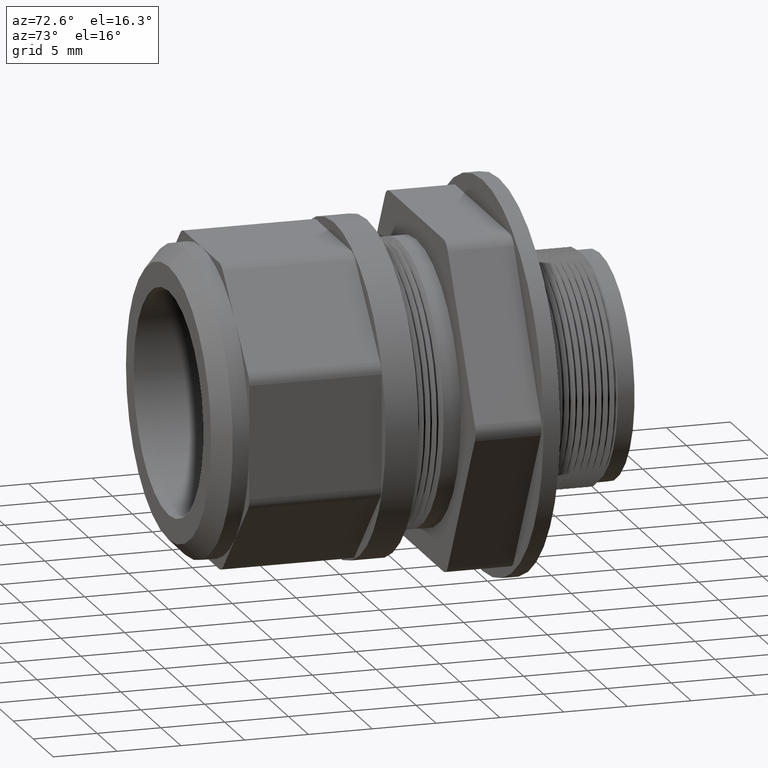
[diagram: clean part render]
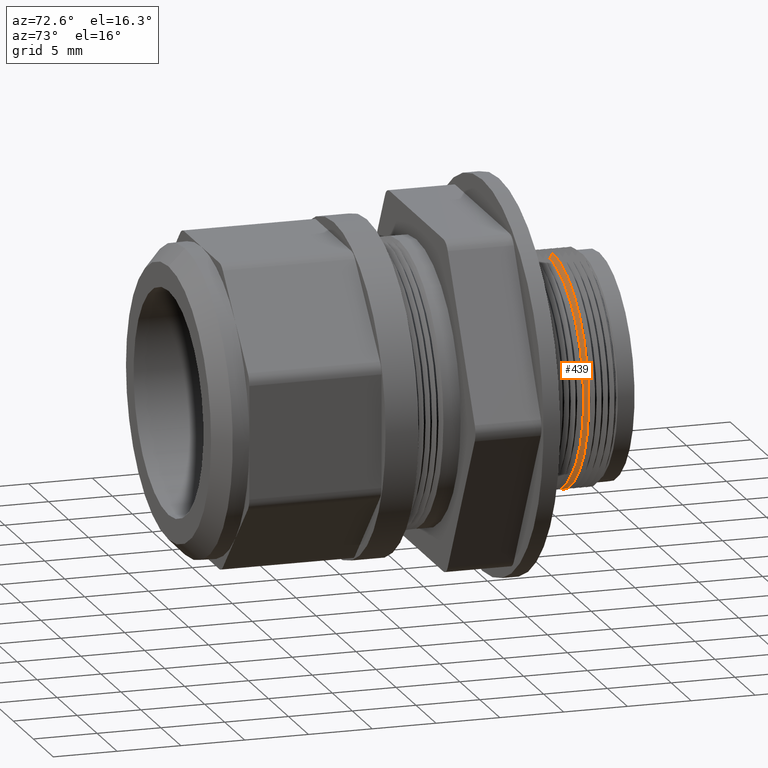
[diagram: same view with one face highlighted and labeled with its STEP entity id]
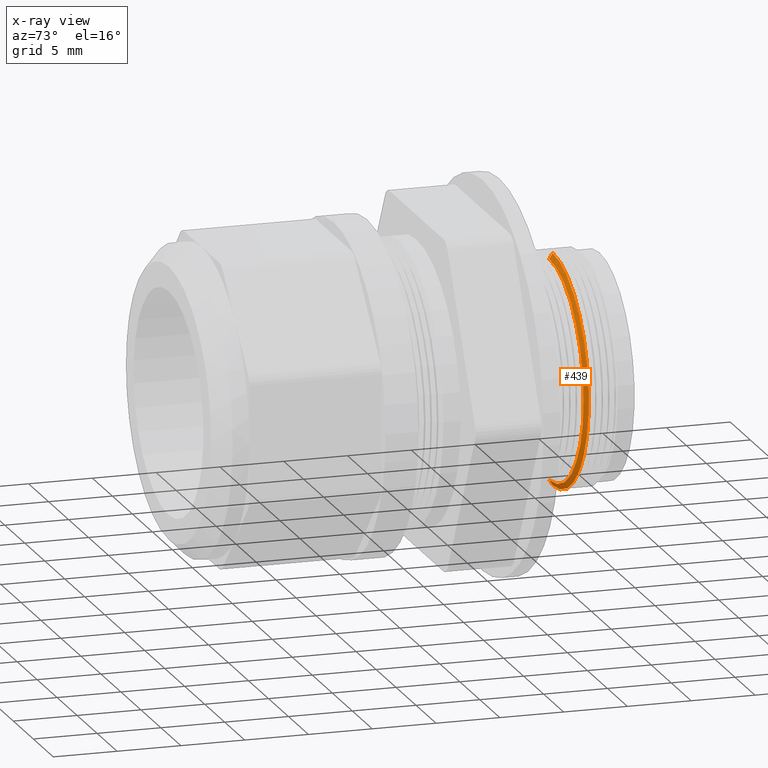
[diagram: x-ray of the same camera — body ghosted, the highlighted face saturated]
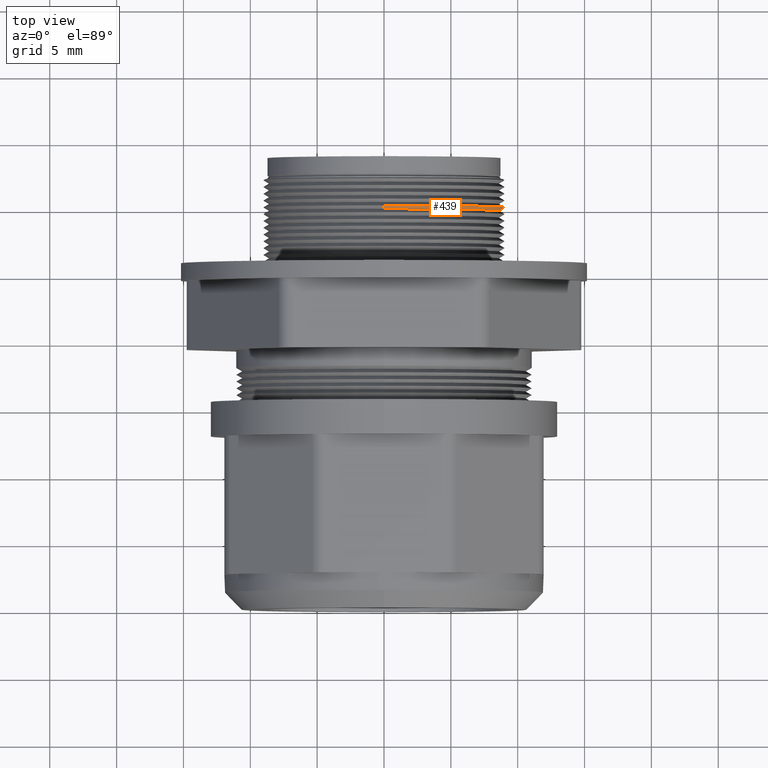
[diagram: same view with one face highlighted and labeled with its STEP entity id]
A machine part, auxiliary view. The second image highlights one B-rep face of the part: STEP entity #439.
The next image is the same camera in x-ray: the body ghosted, the highlighted face saturated — about 2% of this face is hidden behind the body in this view.
A second angle (top view) of the same face is appended — the face is thin or edge-on in the first view.
In plain terms, the highlighted conical surface has half-angle 59.982 deg.
Its self-contained STEP definition (entity closure, byte-faithful):
#270 = EDGE_CURVE ( 'NONE', #727, #442, #2173, .T. ) ;
#271 = ORIENTED_EDGE ( 'NONE', *, *, #270, .T. ) ;
#436 = EDGE_CURVE ( 'NONE', #726, #727, #2741, .T. ) ;
#437 = ORIENTED_EDGE ( 'NONE', *, *, #436, .T. ) ;
#438 = EDGE_LOOP ( 'NONE', ( #437, #271, #460, #459 ) ) ;
#439 = ADVANCED_FACE ( 'NONE', ( #2737 ), #2772, .T. ) ;
#442 = VERTEX_POINT ( 'NONE', #2765 ) ;
#443 = VERTEX_POINT ( 'NONE', #2764 ) ;
#444 = EDGE_CURVE ( 'NONE', #442, #443, #2763, .T. ) ;
#458 = EDGE_CURVE ( 'NONE', #726, #443, #2832, .T. ) ;
#459 = ORIENTED_EDGE ( 'NONE', *, *, #458, .F. ) ;
#460 = ORIENTED_EDGE ( 'NONE', *, *, #444, .T. ) ;
#726 = VERTEX_POINT ( 'NONE', #3730 ) ;
#727 = VERTEX_POINT ( 'NONE', #3729 ) ;
#2166 = DIRECTION ( 'NONE',  ( 1.060382819321407300E-016, 0.5002720452261514300, -0.8658682814177012200 ) ) ;
#2167 = VECTOR ( 'NONE', #2166, 39.37007874015748100 ) ;
#2168 = CARTESIAN_POINT ( 'NONE',  ( 4.151730550851698300E-017, 1.174991837162775000, -0.3390145267796637100 ) ) ;
#2173 = LINE ( 'NONE', #2168, #2167 ) ;
#2737 = FACE_OUTER_BOUND ( 'NONE', #438, .T. ) ;
#2738 = DIRECTION ( 'NONE',  ( 0.0000000000000000000, 0.0000000000000000000, 1.000000000000000000 ) ) ;
#2739 = DIRECTION ( 'NONE',  ( 0.0000000000000000000, 1.000000000000000000, 0.0000000000000000000 ) ) ;
#2740 = AXIS2_PLACEMENT_3D ( 'NONE', #2747, #2739, #2738 ) ;
#2741 = CIRCLE ( 'NONE', #2740, 0.3390145267796637100 ) ;
#2747 = CARTESIAN_POINT ( 'NONE',  ( 0.0000000000000000000, 1.174991837162775000, 0.0000000000000000000 ) ) ;
#2759 = DIRECTION ( 'NONE',  ( 0.0000000000000000000, 0.0000000000000000000, -1.000000000000000000 ) ) ;
#2760 = DIRECTION ( 'NONE',  ( 0.0000000000000000000, -1.000000000000000000, 0.0000000000000000000 ) ) ;
#2761 = CARTESIAN_POINT ( 'NONE',  ( 0.0000000000000000000, 1.184999092359754600, 0.0000000000000000000 ) ) ;
#2762 = AXIS2_PLACEMENT_3D ( 'NONE', #2761, #2760, #2759 ) ;
#2763 = CIRCLE ( 'NONE', #2762, 0.3563350325760648000 ) ;
#2764 = CARTESIAN_POINT ( 'NONE',  ( 0.0000000000000000000, 1.184999092359754600, 0.3563350325760648600 ) ) ;
#2765 = CARTESIAN_POINT ( 'NONE',  ( 4.363845570683456900E-017, 1.184999092359754600, -0.3563350325760648600 ) ) ;
#2769 = DIRECTION ( 'NONE',  ( 0.0000000000000000000, 0.0000000000000000000, 1.000000000000000000 ) ) ;
#2770 = DIRECTION ( 'NONE',  ( 0.0000000000000000000, 1.000000000000000000, 0.0000000000000000000 ) ) ;
#2771 = AXIS2_PLACEMENT_3D ( 'NONE', #2774, #2770, #2769 ) ;
#2772 = CONICAL_SURFACE ( 'NONE', #2771, 0.3390145267796637100, 1.046883391931235900 ) ;
#2774 = CARTESIAN_POINT ( 'NONE',  ( 0.0000000000000000000, 1.174991837162775000, 0.0000000000000000000 ) ) ;
#2825 = DIRECTION ( 'NONE',  ( 0.0000000000000000000, 0.5002720452261514300, 0.8658682814177012200 ) ) ;
#2826 = VECTOR ( 'NONE', #2825, 39.37007874015748100 ) ;
#2827 = CARTESIAN_POINT ( 'NONE',  ( 0.0000000000000000000, 1.174991837162775000, 0.3390145267796637100 ) ) ;
#2832 = LINE ( 'NONE', #2827, #2826 ) ;
#3729 = CARTESIAN_POINT ( 'NONE',  ( 0.0000000000000000000, 1.174991837162775000, -0.3390145267796637100 ) ) ;
#3730 = CARTESIAN_POINT ( 'NONE',  ( 4.257788060767577600E-017, 1.174991837162775000, 0.3390145267796637100 ) ) ;